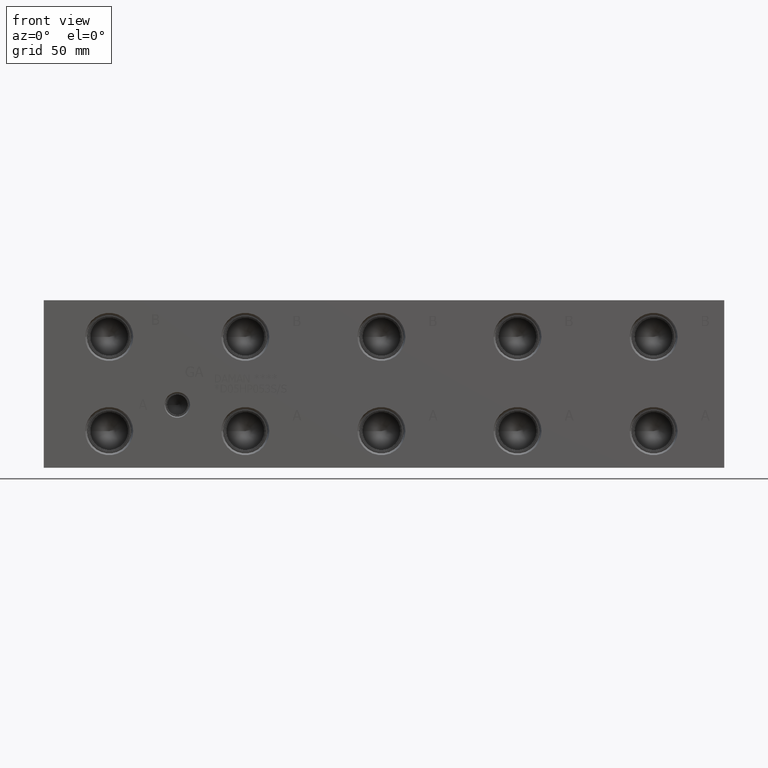
[diagram: clean part render]
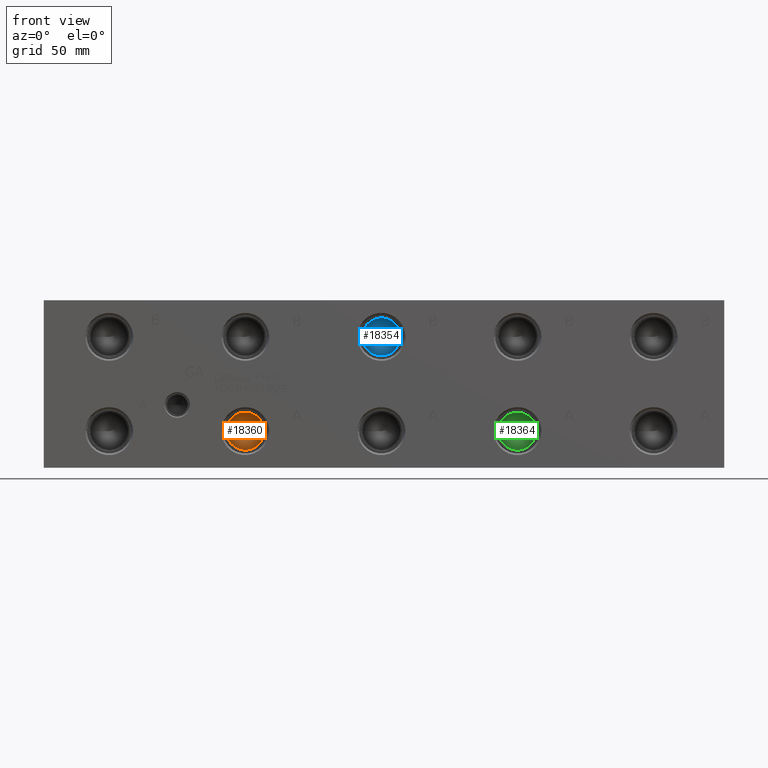
[diagram: same view with three faces highlighted in distinct colors, each labeled with its STEP entity id]
A machine part, front view with three faces highlighted in distinct colors.
Their STEP definitions:

[orange] entity #18360 — the highlighted conical surface has half-angle 60 deg.
#64=CONICAL_SURFACE('',#19379,5.7531,1.0471975511966);
#762=CIRCLE('',#19380,11.5062);
#763=CIRCLE('',#19381,11.5062);
#2476=FACE_OUTER_BOUND('',#3550,.T.);
#3550=EDGE_LOOP('',(#15524,#15525,#15526,#15527));
#5224=LINE('',#31339,#6789);
#6789=VECTOR('',#22927,5.7531);
#8387=VERTEX_POINT('',#31335);
#8388=VERTEX_POINT('',#31336);
#8389=VERTEX_POINT('',#31338);
#10863=EDGE_CURVE('',#8387,#8388,#762,.T.);
#10864=EDGE_CURVE('',#8388,#8389,#5224,.T.);
#10865=EDGE_CURVE('',#8388,#8387,#763,.T.);
#15524=ORIENTED_EDGE('',*,*,#10863,.T.);
#15525=ORIENTED_EDGE('',*,*,#10864,.T.);
#15526=ORIENTED_EDGE('',*,*,#10864,.F.);
#15527=ORIENTED_EDGE('',*,*,#10865,.T.);
#18360=ADVANCED_FACE('',(#2476),#64,.F.);
#19379=AXIS2_PLACEMENT_3D('',#31334,#22923,#22924);
#19380=AXIS2_PLACEMENT_3D('',#31337,#22925,#22926);
#19381=AXIS2_PLACEMENT_3D('',#31340,#22928,#22929);
#22923=DIRECTION('center_axis',(0.,-1.,0.));
#22924=DIRECTION('ref_axis',(1.,0.,0.));
#22925=DIRECTION('center_axis',(0.,-1.,0.));
#22926=DIRECTION('ref_axis',(1.,0.,0.));
#22927=DIRECTION('',(0.866025403784439,0.5,1.06057523872491E-16));
#22928=DIRECTION('center_axis',(0.,-1.,0.));
#22929=DIRECTION('ref_axis',(1.,0.,0.));
#31334=CARTESIAN_POINT('Origin',(122.2248,34.1787738336748,22.225));
#31335=CARTESIAN_POINT('',(133.731,30.85722,22.225));
#31336=CARTESIAN_POINT('',(110.7186,30.85722,22.225));
#31337=CARTESIAN_POINT('Origin',(122.2248,30.85722,22.225));
#31338=CARTESIAN_POINT('',(122.2248,37.5003276673497,22.225));
#31339=CARTESIAN_POINT('',(116.4717,34.1787738336748,22.225));
#31340=CARTESIAN_POINT('Origin',(122.2248,30.85722,22.225));

[blue] entity #18354 — the highlighted conical surface has half-angle 60 deg.
#61=CONICAL_SURFACE('',#19364,5.7531,1.0471975511966);
#753=CIRCLE('',#19365,11.5062);
#754=CIRCLE('',#19366,11.5062);
#2470=FACE_OUTER_BOUND('',#3544,.T.);
#3544=EDGE_LOOP('',(#15497,#15498,#15499,#15500));
#5218=LINE('',#31306,#6783);
#6783=VECTOR('',#22891,5.7531);
#8375=VERTEX_POINT('',#31302);
#8376=VERTEX_POINT('',#31303);
#8377=VERTEX_POINT('',#31305);
#10848=EDGE_CURVE('',#8375,#8376,#753,.T.);
#10849=EDGE_CURVE('',#8376,#8377,#5218,.T.);
#10850=EDGE_CURVE('',#8376,#8375,#754,.T.);
#15497=ORIENTED_EDGE('',*,*,#10848,.T.);
#15498=ORIENTED_EDGE('',*,*,#10849,.T.);
#15499=ORIENTED_EDGE('',*,*,#10849,.F.);
#15500=ORIENTED_EDGE('',*,*,#10850,.T.);
#18354=ADVANCED_FACE('',(#2470),#61,.F.);
#19364=AXIS2_PLACEMENT_3D('',#31301,#22887,#22888);
#19365=AXIS2_PLACEMENT_3D('',#31304,#22889,#22890);
#19366=AXIS2_PLACEMENT_3D('',#31307,#22892,#22893);
#22887=DIRECTION('center_axis',(0.,-1.,0.));
#22888=DIRECTION('ref_axis',(1.,0.,0.));
#22889=DIRECTION('center_axis',(0.,-1.,0.));
#22890=DIRECTION('ref_axis',(1.,0.,0.));
#22891=DIRECTION('',(0.866025403784439,0.5,1.06057523872491E-16));
#22892=DIRECTION('center_axis',(0.,-1.,0.));
#22893=DIRECTION('ref_axis',(1.,0.,0.));
#31301=CARTESIAN_POINT('Origin',(204.7748,34.1787738336748,79.375));
#31302=CARTESIAN_POINT('',(216.281,30.85722,79.375));
#31303=CARTESIAN_POINT('',(193.2686,30.85722,79.375));
#31304=CARTESIAN_POINT('Origin',(204.7748,30.85722,79.375));
#31305=CARTESIAN_POINT('',(204.7748,37.5003276673497,79.375));
#31306=CARTESIAN_POINT('',(199.0217,34.1787738336748,79.375));
#31307=CARTESIAN_POINT('Origin',(204.7748,30.85722,79.375));

[green] entity #18364 — the highlighted conical surface has half-angle 60 deg.
#66=CONICAL_SURFACE('',#19389,5.7531,1.0471975511966);
#768=CIRCLE('',#19390,11.5062);
#769=CIRCLE('',#19391,11.5062);
#2480=FACE_OUTER_BOUND('',#3554,.T.);
#3554=EDGE_LOOP('',(#15542,#15543,#15544,#15545));
#5228=LINE('',#31361,#6793);
#6793=VECTOR('',#22951,5.7531);
#8395=VERTEX_POINT('',#31357);
#8396=VERTEX_POINT('',#31358);
#8397=VERTEX_POINT('',#31360);
#10873=EDGE_CURVE('',#8395,#8396,#768,.T.);
#10874=EDGE_CURVE('',#8396,#8397,#5228,.T.);
#10875=EDGE_CURVE('',#8396,#8395,#769,.T.);
#15542=ORIENTED_EDGE('',*,*,#10873,.T.);
#15543=ORIENTED_EDGE('',*,*,#10874,.T.);
#15544=ORIENTED_EDGE('',*,*,#10874,.F.);
#15545=ORIENTED_EDGE('',*,*,#10875,.T.);
#18364=ADVANCED_FACE('',(#2480),#66,.F.);
#19389=AXIS2_PLACEMENT_3D('',#31356,#22947,#22948);
#19390=AXIS2_PLACEMENT_3D('',#31359,#22949,#22950);
#19391=AXIS2_PLACEMENT_3D('',#31362,#22952,#22953);
#22947=DIRECTION('center_axis',(0.,-1.,0.));
#22948=DIRECTION('ref_axis',(1.,0.,0.));
#22949=DIRECTION('center_axis',(0.,-1.,0.));
#22950=DIRECTION('ref_axis',(1.,0.,0.));
#22951=DIRECTION('',(0.866025403784439,0.5,1.06057523872491E-16));
#22952=DIRECTION('center_axis',(0.,-1.,0.));
#22953=DIRECTION('ref_axis',(1.,0.,0.));
#31356=CARTESIAN_POINT('Origin',(287.3248,34.1787738336748,22.225));
#31357=CARTESIAN_POINT('',(298.831,30.85722,22.225));
#31358=CARTESIAN_POINT('',(275.8186,30.85722,22.225));
#31359=CARTESIAN_POINT('Origin',(287.3248,30.85722,22.225));
#31360=CARTESIAN_POINT('',(287.3248,37.5003276673497,22.225));
#31361=CARTESIAN_POINT('',(281.5717,34.1787738336748,22.225));
#31362=CARTESIAN_POINT('Origin',(287.3248,30.85722,22.225));